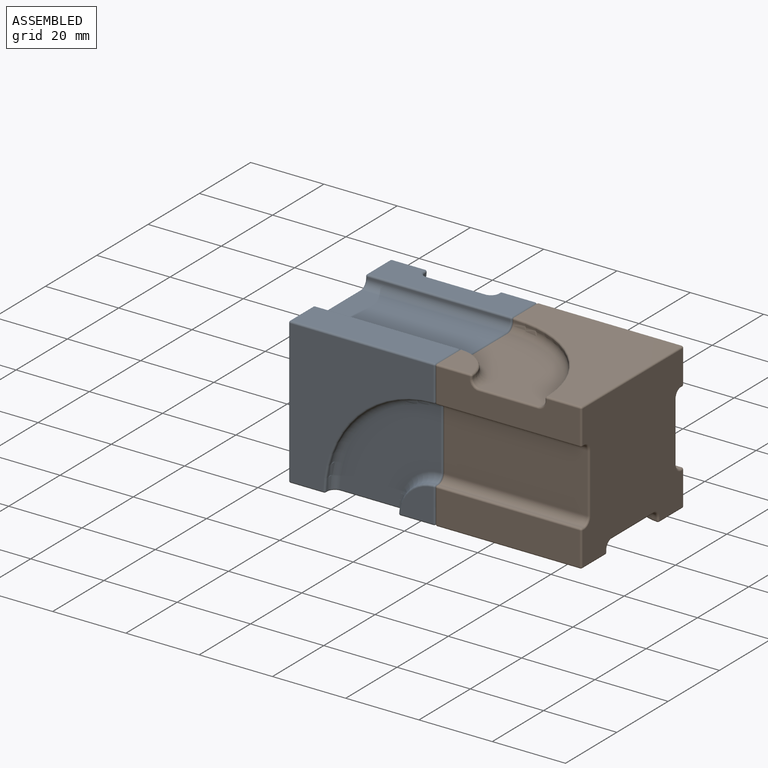
[diagram: assembled view]
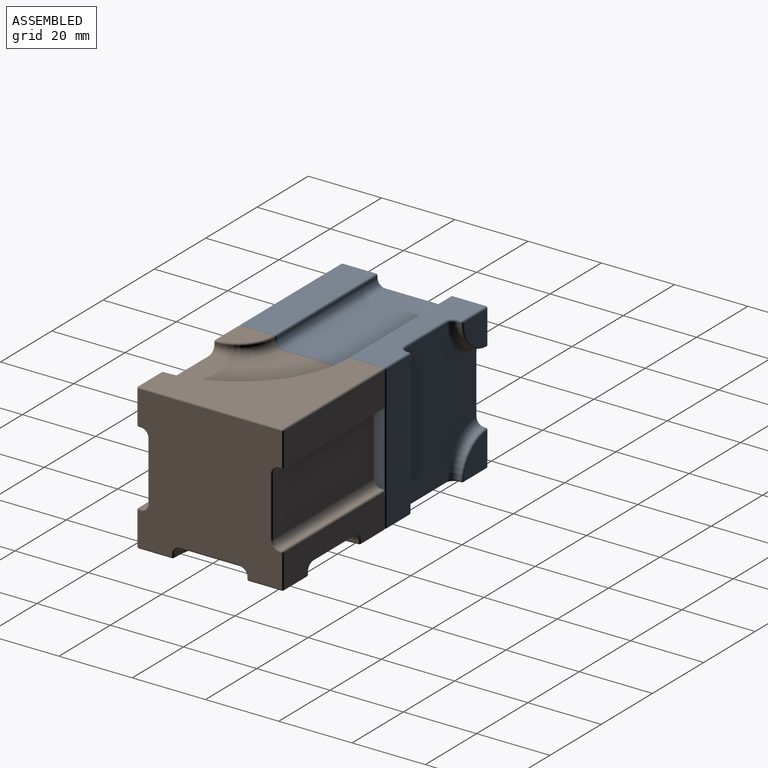
[diagram: assembled view, second angle]
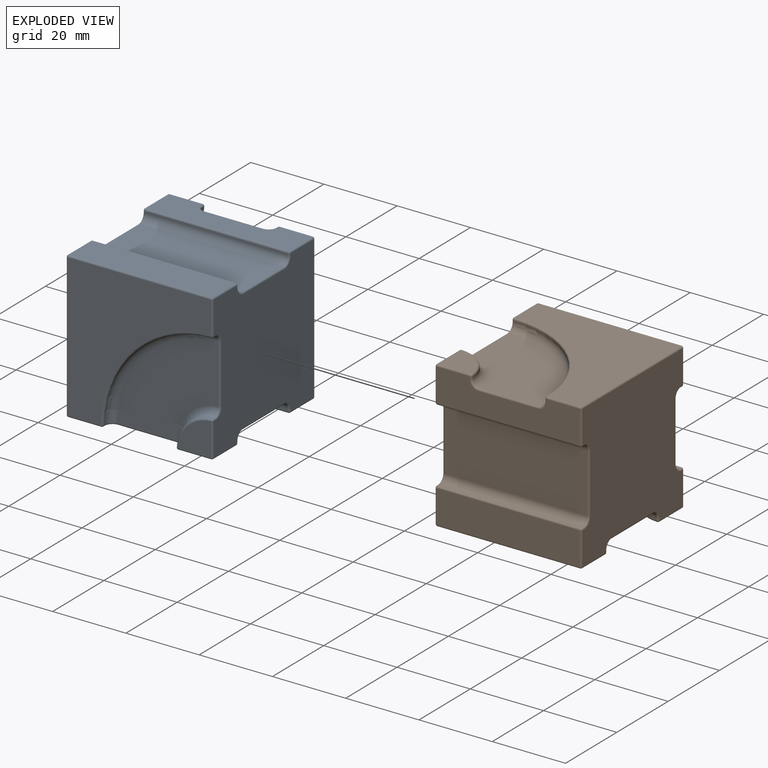
[diagram: exploded view]
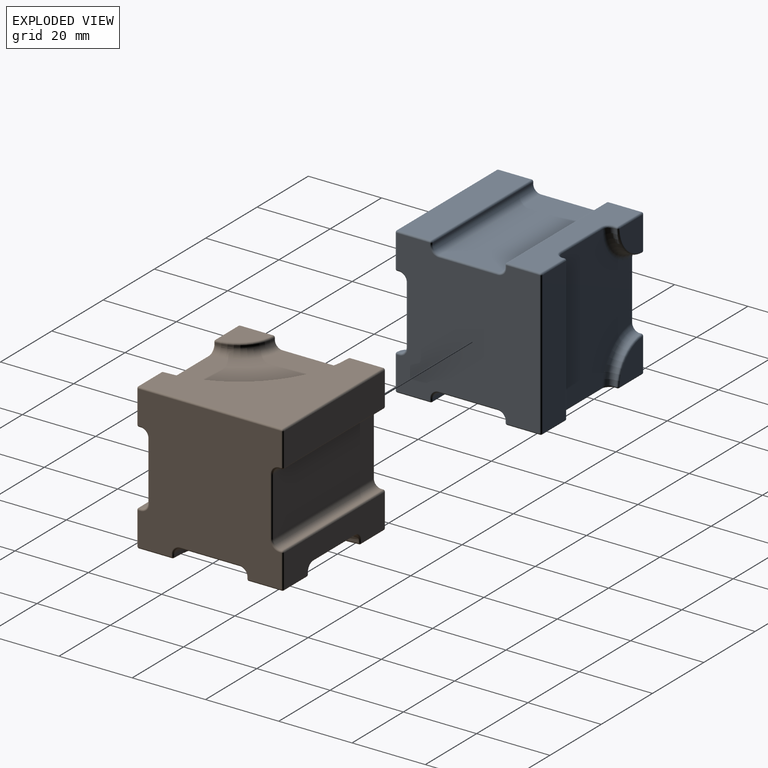
[diagram: exploded view, second angle]
ASSEMBLY  parts=2 mates=3
PART A: 134 faces, bbox 40x40.8x40 mm
  f0: plane 39x9mm, normal (0,0,-1), area 290.6mm2, adj f37,f38,f41,f49,f50,f61,f72,f73
  f1: plane 39x39mm, normal (-1,0,0), area 1340mm2, adj f36,f39,f40,f47,f48,f50,f51,f58
  f2: plane 39x9mm, normal (0,1,0), area 351mm2, adj f90,f91,f106,f107
  f3: plane 8.99x8.99mm, normal (0,1,0), area 61.6mm2, adj f33,f38,f39
  f4: plane 39x9mm, normal (0,0,-1), area 290.7mm2, adj f42,f55,f56,f65,f76,f77,f85,f94
  f5: plane 8.99x8.99mm, normal (0,-1,0), area 61.6mm2, adj f42,f53,f54
  f6: plane 39x9mm, normal (0,0,1), area 290.6mm2, adj f60,f70,f71,f81,f88,f89,f105,f106
  f7: plane 39x39mm, normal (1,0,0), area 1340mm2, adj f45,f52,f53,f56,f57,f63,f74,f75
  f8: plane 39x9mm, normal (0,0,1), area 351mm2, adj f120,f121,f127,f128
  f9: plane 39x39mm, normal (0,-1,0), area 820.6mm2, adj f95,f109,f110,f119,f120
  f10: plane 8.99x8.99mm, normal (0,1,0), area 61.6mm2, adj f69,f87,f88
  f11: plane 39x0.5mm, normal (0,1,0), area 19.5mm2, adj f32,f122,f128,f132
  f12: plane 39x0.5mm, normal (0,-1,0), area 19.5mm2, adj f31,f104,f117,f126
  f13: plane 39x16mm, normal (0,0,1), area 624mm2, adj f31,f32,f111,f131
  f14: plane 39x0.5mm, normal (0,-1,0), area 19.5mm2, adj f30,f51,f73,f74
  f15: plane 39x0.5mm, normal (0,1,0), area 19.5mm2, adj f29,f57,f77,f78
  f16: plane 39x16mm, normal (0,0,-1), area 624mm2, adj f29,f30,f52,f58
  f17: cylinder r=30mm len=29.5mm, axis (0,-1,0), area 23.1mm2, adj f28,f94,f108,f109
  f18: cylinder r=10mm len=9.46mm, axis (0,-1,0), area 7.3mm2, adj f27,f54,f55,f75
  f19: plane 27.5x27.5mm, normal (0,-1,0), area 486.7mm2, adj f27,f28,f76,f93
  f20: plane 39x0.5mm, normal (-1,0,0), area 19.5mm2, adj f26,f72,f89,f90
  f21: cylinder r=10mm len=9.46mm, axis (0,1,0), area 7.3mm2, adj f25,f33,f36,f37
  f22: cylinder r=10mm len=9.46mm, axis (0,1,0), area 7.3mm2, adj f24,f68,f69,f70
  f23: plane 39x27.5mm, normal (0,1,0), area 869.8mm2, adj f24,f25,f26,f48,f49,f71
  f24: torus R=12mm, axis (0,1,0), area 49.7mm2, adj f22,f23,f59,f60
  f25: torus R=12mm, axis (0,1,0), area 49.7mm2, adj f21,f23,f40,f41
  f26: cylinder r=2mm len=39mm, axis (0,0,-1), area 122.5mm2, adj f20,f23,f61,f81
  f27: torus R=12mm, axis (0,-1,0), area 49.7mm2, adj f18,f19,f65,f84
  f28: torus R=28mm, axis (0,-1,0), area 141.3mm2, adj f17,f19,f85,f100
  f29: cylinder r=2mm len=39mm, axis (-1,0,0), area 122.5mm2, adj f15,f16,f45,f67
  f30: cylinder r=2mm len=39mm, axis (1,0,0), area 122.5mm2, adj f14,f16,f47,f63
  f31: cylinder r=2mm len=39mm, axis (-1,0,0), area 122.5mm2, adj f12,f13,f103,f129
  f32: cylinder r=2mm len=39mm, axis (1,0,0), area 122.5mm2, adj f11,f13,f116,f133
  f33: torus R=9.5mm, axis (0,-1,0), area 11.3mm2, adj f3,f21,f34,f35
  f34: sphere r=0.5mm, area 0.4mm2, adj f33,f37,f38
  f35: sphere r=0.5mm, area 0.4mm2, adj f33,f36,f39
  f36: cylinder r=0.5mm len=0.53mm, axis (0,1,0), area 0.4mm2, adj f1,f21,f35,f40
  f37: cylinder r=0.5mm len=0.53mm, axis (0,1,0), area 0.4mm2, adj f0,f21,f34,f41
  f38: cylinder r=0.5mm len=8.99mm, axis (1,0,0), area 7.1mm2, adj f0,f3,f34,f46
  f39: cylinder r=0.5mm len=8.99mm, axis (0,0,-1), area 7.1mm2, adj f1,f3,f35,f46
  f40: bspline ~3.06x3.06mm, area 2.7mm2, adj f1,f25,f36,f48
  f41: bspline ~3.06x3.06mm, area 2.7mm2, adj f0,f25,f37,f49
  f42: cylinder r=0.5mm len=8.99mm, axis (-1,0,0), area 7.1mm2, adj f4,f5,f43,f44
  f43: sphere r=0.5mm, area 0.4mm2, adj f42,f54,f55
  f44: sphere r=0.5mm, area 0.4mm2, adj f42,f53,f56
  f45: torus R=2.5mm, axis (-1,0,0), area 2.7mm2, adj f7,f29,f52,f57
  f46: sphere r=0.5mm, area 0.4mm2, adj f38,f39,f50
  f47: torus R=2.5mm, axis (-1,0,0), area 2.7mm2, adj f1,f30,f51,f58
  f48: cylinder r=0.5mm len=16.02mm, axis (0,0,1), area 12.6mm2, adj f1,f23,f40,f59
  f49: cylinder r=0.5mm len=16.01mm, axis (-1,0,0), area 12.6mm2, adj f0,f23,f41,f61
  f50: cylinder r=0.5mm len=9mm, axis (0,1,0), area 7.1mm2, adj f0,f1,f46,f62
  f51: cylinder r=0.5mm len=0.5mm, axis (0,0,-1), area 0.4mm2, adj f1,f14,f47,f62
  f52: cylinder r=0.5mm len=16mm, axis (0,-1,0), area 12.6mm2, adj f7,f16,f45,f63
  f53: cylinder r=0.5mm len=8.99mm, axis (0,0,-1), area 7.1mm2, adj f5,f7,f44,f64
  f54: torus R=9.5mm, axis (0,-1,0), area 11.3mm2, adj f5,f18,f43,f64
  f55: cylinder r=0.5mm len=0.53mm, axis (0,-1,0), area 0.4mm2, adj f4,f18,f43,f65
  f56: cylinder r=0.5mm len=9mm, axis (0,-1,0), area 7.1mm2, adj f4,f7,f44,f66
  f57: cylinder r=0.5mm len=0.5mm, axis (0,0,-1), area 0.4mm2, adj f7,f15,f45,f66
  f58: cylinder r=0.5mm len=16mm, axis (0,1,0), area 12.6mm2, adj f1,f16,f47,f67
  f59: bspline ~3.06x3.06mm, area 2.7mm2, adj f1,f24,f48,f68
  f60: bspline ~3.06x3.06mm, area 2.7mm2, adj f6,f24,f70,f71
  f61: torus R=2.5mm, axis (0,0,-1), area 2.7mm2, adj f0,f26,f49,f72
  f62: sphere r=0.5mm, area 0.4mm2, adj f50,f51,f73
  f63: torus R=2.5mm, axis (-1,0,0), area 2.7mm2, adj f7,f30,f52,f74
  f64: sphere r=0.5mm, area 0.4mm2, adj f53,f54,f75
  f65: bspline ~3.06x3.06mm, area 2.7mm2, adj f4,f27,f55,f76
  f66: sphere r=0.5mm, area 0.4mm2, adj f56,f57,f77
  f67: torus R=2.5mm, axis (-1,0,0), area 2.7mm2, adj f1,f29,f58,f78
  f68: cylinder r=0.5mm len=0.53mm, axis (0,1,0), area 0.4mm2, adj f1,f22,f59,f79
  f69: torus R=9.5mm, axis (0,-1,0), area 11.3mm2, adj f10,f22,f79,f80
  f70: cylinder r=0.5mm len=0.53mm, axis (0,1,0), area 0.4mm2, adj f6,f22,f60,f80
  f71: cylinder r=0.5mm len=16.01mm, axis (1,0,0), area 12.6mm2, adj f6,f23,f60,f81
  f72: cylinder r=0.5mm len=0.5mm, axis (0,-1,0), area 0.4mm2, adj f0,f20,f61,f82
  f73: cylinder r=0.5mm len=39mm, axis (-1,0,0), area 30.6mm2, adj f0,f14,f62,f83
  f74: cylinder r=0.5mm len=0.5mm, axis (0,0,1), area 0.4mm2, adj f7,f14,f63,f83
  f75: cylinder r=0.5mm len=0.53mm, axis (0,-1,0), area 0.4mm2, adj f7,f18,f64,f84
  f76: cylinder r=0.5mm len=16.01mm, axis (-1,0,0), area 12.6mm2, adj f4,f19,f65,f85
  f77: cylinder r=0.5mm len=39mm, axis (1,0,0), area 30.6mm2, adj f4,f15,f66,f86
  f78: cylinder r=0.5mm len=0.5mm, axis (0,0,1), area 0.4mm2, adj f1,f15,f67,f86
  f79: sphere r=0.5mm, area 0.4mm2, adj f68,f69,f87
  f80: sphere r=0.5mm, area 0.4mm2, adj f69,f70,f88
  f81: torus R=2.5mm, axis (0,0,-1), area 2.7mm2, adj f6,f26,f71,f89
  f82: sphere r=0.5mm, area 0.4mm2, adj f72,f90,f91
  f83: sphere r=0.5mm, area 0.4mm2, adj f73,f74,f92
  f84: bspline ~3.06x3.06mm, area 2.7mm2, adj f7,f27,f75,f93
  f85: bspline ~3.06x3.06mm, area 2.7mm2, adj f4,f28,f76,f94
  f86: sphere r=0.5mm, area 0.4mm2, adj f77,f78,f96
  f87: cylinder r=0.5mm len=8.99mm, axis (0,0,-1), area 7.1mm2, adj f1,f10,f79,f97
  f88: cylinder r=0.5mm len=8.99mm, axis (-1,0,0), area 7.1mm2, adj f6,f10,f80,f97
  f89: cylinder r=0.5mm len=0.5mm, axis (0,1,0), area 0.4mm2, adj f6,f20,f81,f98
  f90: cylinder r=0.5mm len=39mm, axis (0,0,-1), area 30.6mm2, adj f2,f20,f82,f98
  f91: cylinder r=0.5mm len=9mm, axis (1,0,0), area 7.1mm2, adj f0,f2,f82,f99
  f92: cylinder r=0.5mm len=9mm, axis (0,-1,0), area 7.1mm2, adj f0,f7,f83,f99
  f93: cylinder r=0.5mm len=16.01mm, axis (0,0,-1), area 12.6mm2, adj f7,f19,f84,f100
  f94: cylinder r=0.5mm len=0.5mm, axis (0,-1,0), area 0.4mm2, adj f4,f17,f85,f101
  f95: cylinder r=0.5mm len=9mm, axis (-1,0,0), area 7.1mm2, adj f4,f9,f101,f102
  f96: cylinder r=0.5mm len=9mm, axis (0,1,0), area 7.1mm2, adj f1,f4,f86,f102
  f97: sphere r=0.5mm, area 0.4mm2, adj f87,f88,f105
  f98: sphere r=0.5mm, area 0.4mm2, adj f89,f90,f106
  f99: sphere r=0.5mm, area 0.4mm2, adj f91,f92,f107
  f100: bspline ~3.06x3.06mm, area 2.7mm2, adj f7,f28,f93,f108
  f101: sphere r=0.5mm, area 0.4mm2, adj f94,f95,f109
  f102: sphere r=0.5mm, area 0.4mm2, adj f95,f96,f110
  f103: torus R=2.5mm, axis (-1,0,0), area 2.7mm2, adj f1,f31,f104,f111
  f104: cylinder r=0.5mm len=0.5mm, axis (0,0,-1), area 0.4mm2, adj f1,f12,f103,f112
  f105: cylinder r=0.5mm len=9mm, axis (0,-1,0), area 7.1mm2, adj f1,f6,f97,f112
  f106: cylinder r=0.5mm len=9mm, axis (-1,0,0), area 7.1mm2, adj f2,f6,f98,f113
  f107: cylinder r=0.5mm len=39mm, axis (0,0,1), area 30.6mm2, adj f2,f7,f99,f113
  f108: cylinder r=0.5mm len=0.5mm, axis (0,-1,0), area 0.4mm2, adj f7,f17,f100,f114
  f109: torus R=30.5mm, axis (0,-1,0), area 36.5mm2, adj f9,f17,f101,f114
  f110: cylinder r=0.5mm len=39mm, axis (0,0,1), area 30.6mm2, adj f1,f9,f102,f115
  f111: cylinder r=0.5mm len=16mm, axis (0,1,0), area 12.6mm2, adj f1,f13,f103,f116
  f112: sphere r=0.5mm, area 0.4mm2, adj f104,f105,f117
  f113: sphere r=0.5mm, area 0.4mm2, adj f106,f107,f118
  f114: sphere r=0.5mm, area 0.4mm2, adj f108,f109,f119
  f115: sphere r=0.5mm, area 0.4mm2, adj f110,f120,f121
  f116: torus R=2.5mm, axis (-1,0,0), area 2.7mm2, adj f1,f32,f111,f122
  f117: cylinder r=0.5mm len=39mm, axis (-1,0,0), area 30.6mm2, adj f6,f12,f112,f123
  f118: cylinder r=0.5mm len=9mm, axis (0,1,0), area 7.1mm2, adj f6,f7,f113,f123
  f119: cylinder r=0.5mm len=9mm, axis (0,0,-1), area 7.1mm2, adj f7,f9,f114,f124
  f120: cylinder r=0.5mm len=39mm, axis (1,0,0), area 30.6mm2, adj f8,f9,f115,f124
  f121: cylinder r=0.5mm len=9mm, axis (0,-1,0), area 7.1mm2, adj f1,f8,f115,f125
  f122: cylinder r=0.5mm len=0.5mm, axis (0,0,1), area 0.4mm2, adj f1,f11,f116,f125
  f123: sphere r=0.5mm, area 0.4mm2, adj f117,f118,f126
  f124: sphere r=0.5mm, area 0.4mm2, adj f119,f120,f127
  f125: sphere r=0.5mm, area 0.4mm2, adj f121,f122,f128
  f126: cylinder r=0.5mm len=0.5mm, axis (0,0,1), area 0.4mm2, adj f7,f12,f123,f129
  f127: cylinder r=0.5mm len=9mm, axis (0,1,0), area 7.1mm2, adj f7,f8,f124,f130
  f128: cylinder r=0.5mm len=39mm, axis (1,0,0), area 30.6mm2, adj f8,f11,f125,f130
  f129: torus R=2.5mm, axis (-1,0,0), area 2.7mm2, adj f7,f31,f126,f131
  f130: sphere r=0.5mm, area 0.4mm2, adj f127,f128,f132
  f131: cylinder r=0.5mm len=16mm, axis (0,-1,0), area 12.6mm2, adj f7,f13,f129,f133
  f132: cylinder r=0.5mm len=0.5mm, axis (0,0,-1), area 0.4mm2, adj f7,f11,f130,f133
  f133: torus R=2.5mm, axis (-1,0,0), area 2.7mm2, adj f7,f32,f131,f132
PART B: 122 faces, bbox 40x40.8x40 mm
  f0: plane 39x39mm, normal (-1,0,0), area 1340mm2, adj f34,f35,f36,f43,f44,f46,f52,f53
  f1: plane 39x39mm, normal (0,1,0), area 820.6mm2, adj f58,f78,f79,f94,f95
  f2: plane 39x9mm, normal (0,0,-1), area 290.7mm2, adj f30,f40,f41,f50,f63,f64,f73,f82
  f3: plane 8.99x8.99mm, normal (0,-1,0), area 61.6mm2, adj f30,f38,f39
  f4: plane 39x9mm, normal (0,0,-1), area 351mm2, adj f59,f60,f79,f80
  f5: plane 39x9mm, normal (0,0,1), area 290.7mm2, adj f45,f55,f56,f68,f76,f77,f93,f94
  f6: plane 39x39mm, normal (1,0,0), area 1340mm2, adj f33,f37,f38,f41,f42,f48,f61,f62
  f7: plane 39x9mm, normal (0,0,1), area 351mm2, adj f108,f109,f115,f116
  f8: plane 39x39mm, normal (0,-1,0), area 820.6mm2, adj f83,f97,f98,f107,f108
  f9: plane 8.99x8.99mm, normal (0,1,0), area 61.6mm2, adj f54,f75,f76
  f10: plane 39x0.5mm, normal (0,1,0), area 19.5mm2, adj f29,f110,f116,f120
  f11: plane 39x0.5mm, normal (0,-1,0), area 19.5mm2, adj f28,f92,f105,f114
  f12: plane 39x16mm, normal (0,0,1), area 624mm2, adj f28,f29,f99,f119
  f13: plane 39x0.5mm, normal (0,-1,0), area 19.5mm2, adj f27,f36,f60,f61
  f14: plane 39x0.5mm, normal (0,1,0), area 19.5mm2, adj f26,f42,f64,f65
  f15: plane 39x16mm, normal (0,0,-1), area 624mm2, adj f26,f27,f37,f43
  f16: cylinder r=30mm len=29.5mm, axis (0,-1,0), area 23.1mm2, adj f25,f82,f96,f97
  f17: cylinder r=10mm len=9.46mm, axis (0,-1,0), area 7.3mm2, adj f24,f39,f40,f62
  f18: plane 27.5x27.5mm, normal (0,-1,0), area 486.7mm2, adj f24,f25,f63,f81
  f19: cylinder r=30mm len=29.5mm, axis (0,1,0), area 23.1mm2, adj f23,f57,f77,f78
  f20: cylinder r=10mm len=9.46mm, axis (0,1,0), area 7.3mm2, adj f22,f53,f54,f55
  f21: plane 27.5x27.5mm, normal (0,1,0), area 486.7mm2, adj f22,f23,f35,f56
  f22: torus R=12mm, axis (0,1,0), area 49.7mm2, adj f20,f21,f44,f45
  f23: torus R=28mm, axis (0,1,0), area 141.3mm2, adj f19,f21,f46,f68
  f24: torus R=12mm, axis (0,-1,0), area 49.7mm2, adj f17,f18,f50,f72
  f25: torus R=28mm, axis (0,-1,0), area 141.3mm2, adj f16,f18,f73,f88
  f26: cylinder r=2mm len=39mm, axis (-1,0,0), area 122.5mm2, adj f14,f15,f33,f52
  f27: cylinder r=2mm len=39mm, axis (1,0,0), area 122.5mm2, adj f13,f15,f34,f48
  f28: cylinder r=2mm len=39mm, axis (-1,0,0), area 122.5mm2, adj f11,f12,f91,f117
  f29: cylinder r=2mm len=39mm, axis (1,0,0), area 122.5mm2, adj f10,f12,f104,f121
  f30: cylinder r=0.5mm len=8.99mm, axis (-1,0,0), area 7.1mm2, adj f2,f3,f31,f32
  f31: sphere r=0.5mm, area 0.4mm2, adj f30,f39,f40
  f32: sphere r=0.5mm, area 0.4mm2, adj f30,f38,f41
  f33: torus R=2.5mm, axis (-1,0,0), area 2.7mm2, adj f6,f26,f37,f42
  f34: torus R=2.5mm, axis (-1,0,0), area 2.7mm2, adj f0,f27,f36,f43
  f35: cylinder r=0.5mm len=16.01mm, axis (0,0,1), area 12.6mm2, adj f0,f21,f44,f46
  f36: cylinder r=0.5mm len=0.5mm, axis (0,0,-1), area 0.4mm2, adj f0,f13,f34,f47
  f37: cylinder r=0.5mm len=16mm, axis (0,-1,0), area 12.6mm2, adj f6,f15,f33,f48
  f38: cylinder r=0.5mm len=8.99mm, axis (0,0,-1), area 7.1mm2, adj f3,f6,f32,f49
  f39: torus R=9.5mm, axis (0,-1,0), area 11.3mm2, adj f3,f17,f31,f49
  f40: cylinder r=0.5mm len=0.53mm, axis (0,-1,0), area 0.4mm2, adj f2,f17,f31,f50
  f41: cylinder r=0.5mm len=9mm, axis (0,-1,0), area 7.1mm2, adj f2,f6,f32,f51
  f42: cylinder r=0.5mm len=0.5mm, axis (0,0,-1), area 0.4mm2, adj f6,f14,f33,f51
  f43: cylinder r=0.5mm len=16mm, axis (0,1,0), area 12.6mm2, adj f0,f15,f34,f52
  f44: bspline ~3.06x3.06mm, area 2.7mm2, adj f0,f22,f35,f53
  f45: bspline ~3.06x3.06mm, area 2.7mm2, adj f5,f22,f55,f56
  f46: bspline ~3.06x3.06mm, area 2.7mm2, adj f0,f23,f35,f57
  f47: sphere r=0.5mm, area 0.4mm2, adj f36,f59,f60
  f48: torus R=2.5mm, axis (-1,0,0), area 2.7mm2, adj f6,f27,f37,f61
  f49: sphere r=0.5mm, area 0.4mm2, adj f38,f39,f62
  f50: bspline ~3.06x3.06mm, area 2.7mm2, adj f2,f24,f40,f63
  f51: sphere r=0.5mm, area 0.4mm2, adj f41,f42,f64
  f52: torus R=2.5mm, axis (-1,0,0), area 2.7mm2, adj f0,f26,f43,f65
  f53: cylinder r=0.5mm len=0.53mm, axis (0,1,0), area 0.4mm2, adj f0,f20,f44,f66
  f54: torus R=9.5mm, axis (0,-1,0), area 11.3mm2, adj f9,f20,f66,f67
  f55: cylinder r=0.5mm len=0.53mm, axis (0,1,0), area 0.4mm2, adj f5,f20,f45,f67
  f56: cylinder r=0.5mm len=16.01mm, axis (1,0,0), area 12.6mm2, adj f5,f21,f45,f68
  f57: cylinder r=0.5mm len=0.5mm, axis (0,1,0), area 0.4mm2, adj f0,f19,f46,f69
  f58: cylinder r=0.5mm len=9mm, axis (0,0,-1), area 7.1mm2, adj f0,f1,f69,f70
  f59: cylinder r=0.5mm len=9mm, axis (0,1,0), area 7.1mm2, adj f0,f4,f47,f70
  f60: cylinder r=0.5mm len=39mm, axis (-1,0,0), area 30.6mm2, adj f4,f13,f47,f71
  f61: cylinder r=0.5mm len=0.5mm, axis (0,0,1), area 0.4mm2, adj f6,f13,f48,f71
  f62: cylinder r=0.5mm len=0.53mm, axis (0,-1,0), area 0.4mm2, adj f6,f17,f49,f72
  f63: cylinder r=0.5mm len=16.01mm, axis (-1,0,0), area 12.6mm2, adj f2,f18,f50,f73
  f64: cylinder r=0.5mm len=39mm, axis (1,0,0), area 30.6mm2, adj f2,f14,f51,f74
  f65: cylinder r=0.5mm len=0.5mm, axis (0,0,1), area 0.4mm2, adj f0,f14,f52,f74
  f66: sphere r=0.5mm, area 0.4mm2, adj f53,f54,f75
  f67: sphere r=0.5mm, area 0.4mm2, adj f54,f55,f76
  f68: bspline ~3.06x3.06mm, area 2.7mm2, adj f5,f23,f56,f77
  f69: sphere r=0.5mm, area 0.4mm2, adj f57,f58,f78
  f70: sphere r=0.5mm, area 0.4mm2, adj f58,f59,f79
  f71: sphere r=0.5mm, area 0.4mm2, adj f60,f61,f80
  f72: bspline ~3.06x3.06mm, area 2.7mm2, adj f6,f24,f62,f81
  f73: bspline ~3.06x3.06mm, area 2.7mm2, adj f2,f25,f63,f82
  f74: sphere r=0.5mm, area 0.4mm2, adj f64,f65,f84
  f75: cylinder r=0.5mm len=8.99mm, axis (0,0,-1), area 7.1mm2, adj f0,f9,f66,f85
  f76: cylinder r=0.5mm len=8.99mm, axis (-1,0,0), area 7.1mm2, adj f5,f9,f67,f85
  f77: cylinder r=0.5mm len=0.5mm, axis (0,1,0), area 0.4mm2, adj f5,f19,f68,f86
  f78: torus R=30.5mm, axis (0,-1,0), area 36.5mm2, adj f1,f19,f69,f86
  f79: cylinder r=0.5mm len=39mm, axis (1,0,0), area 30.6mm2, adj f1,f4,f70,f87
  f80: cylinder r=0.5mm len=9mm, axis (0,-1,0), area 7.1mm2, adj f4,f6,f71,f87
  f81: cylinder r=0.5mm len=16.01mm, axis (0,0,-1), area 12.6mm2, adj f6,f18,f72,f88
  f82: cylinder r=0.5mm len=0.5mm, axis (0,-1,0), area 0.4mm2, adj f2,f16,f73,f89
  f83: cylinder r=0.5mm len=9mm, axis (-1,0,0), area 7.1mm2, adj f2,f8,f89,f90
  f84: cylinder r=0.5mm len=9mm, axis (0,1,0), area 7.1mm2, adj f0,f2,f74,f90
  f85: sphere r=0.5mm, area 0.4mm2, adj f75,f76,f93
  f86: sphere r=0.5mm, area 0.4mm2, adj f77,f78,f94
  f87: sphere r=0.5mm, area 0.4mm2, adj f79,f80,f95
  f88: bspline ~3.06x3.06mm, area 2.7mm2, adj f6,f25,f81,f96
  f89: sphere r=0.5mm, area 0.4mm2, adj f82,f83,f97
  f90: sphere r=0.5mm, area 0.4mm2, adj f83,f84,f98
  f91: torus R=2.5mm, axis (-1,0,0), area 2.7mm2, adj f0,f28,f92,f99
  f92: cylinder r=0.5mm len=0.5mm, axis (0,0,-1), area 0.4mm2, adj f0,f11,f91,f100
  f93: cylinder r=0.5mm len=9mm, axis (0,-1,0), area 7.1mm2, adj f0,f5,f85,f100
  f94: cylinder r=0.5mm len=9mm, axis (-1,0,0), area 7.1mm2, adj f1,f5,f86,f101
  f95: cylinder r=0.5mm len=39mm, axis (0,0,1), area 30.6mm2, adj f1,f6,f87,f101
  f96: cylinder r=0.5mm len=0.5mm, axis (0,-1,0), area 0.4mm2, adj f6,f16,f88,f102
  f97: torus R=30.5mm, axis (0,-1,0), area 36.5mm2, adj f8,f16,f89,f102
  f98: cylinder r=0.5mm len=39mm, axis (0,0,1), area 30.6mm2, adj f0,f8,f90,f103
  f99: cylinder r=0.5mm len=16mm, axis (0,1,0), area 12.6mm2, adj f0,f12,f91,f104
  f100: sphere r=0.5mm, area 0.4mm2, adj f92,f93,f105
  f101: sphere r=0.5mm, area 0.4mm2, adj f94,f95,f106
  f102: sphere r=0.5mm, area 0.4mm2, adj f96,f97,f107
  f103: sphere r=0.5mm, area 0.4mm2, adj f98,f108,f109
  f104: torus R=2.5mm, axis (-1,0,0), area 2.7mm2, adj f0,f29,f99,f110
  f105: cylinder r=0.5mm len=39mm, axis (-1,0,0), area 30.6mm2, adj f5,f11,f100,f111
  f106: cylinder r=0.5mm len=9mm, axis (0,1,0), area 7.1mm2, adj f5,f6,f101,f111
  f107: cylinder r=0.5mm len=9mm, axis (0,0,-1), area 7.1mm2, adj f6,f8,f102,f112
  f108: cylinder r=0.5mm len=39mm, axis (1,0,0), area 30.6mm2, adj f7,f8,f103,f112
  f109: cylinder r=0.5mm len=9mm, axis (0,-1,0), area 7.1mm2, adj f0,f7,f103,f113
  f110: cylinder r=0.5mm len=0.5mm, axis (0,0,1), area 0.4mm2, adj f0,f10,f104,f113
  f111: sphere r=0.5mm, area 0.4mm2, adj f105,f106,f114
  f112: sphere r=0.5mm, area 0.4mm2, adj f107,f108,f115
  f113: sphere r=0.5mm, area 0.4mm2, adj f109,f110,f116
  f114: cylinder r=0.5mm len=0.5mm, axis (0,0,1), area 0.4mm2, adj f6,f11,f111,f117
  f115: cylinder r=0.5mm len=9mm, axis (0,1,0), area 7.1mm2, adj f6,f7,f112,f118
  f116: cylinder r=0.5mm len=39mm, axis (1,0,0), area 30.6mm2, adj f7,f10,f113,f118
  f117: torus R=2.5mm, axis (-1,0,0), area 2.7mm2, adj f6,f28,f114,f119
  f118: sphere r=0.5mm, area 0.4mm2, adj f115,f116,f120
  f119: cylinder r=0.5mm len=16mm, axis (0,-1,0), area 12.6mm2, adj f6,f12,f117,f121
  f120: cylinder r=0.5mm len=0.5mm, axis (0,0,-1), area 0.4mm2, adj f6,f10,f118,f121
  f121: torus R=2.5mm, axis (-1,0,0), area 2.7mm2, adj f6,f29,f119,f120
PLACE A t=(-134.02,-56.64,-6.93)mm
PLACE B rot(axis=(1,0,0),90deg) t=(-94.02,-56.64,-6.93)mm
MATE planar B.f0 <-> A.f7  axis (-1,0,0) through (-114.02,-56.64,-7.75)mm
MATE planar B.f8 <-> A.f4  axis (0,0,-1) through (-99.85,-62.47,-26.93)mm
MATE planar A.f9 <-> B.f7  axis (0,-1,0) through (-139.85,-76.64,-1.1)mm
